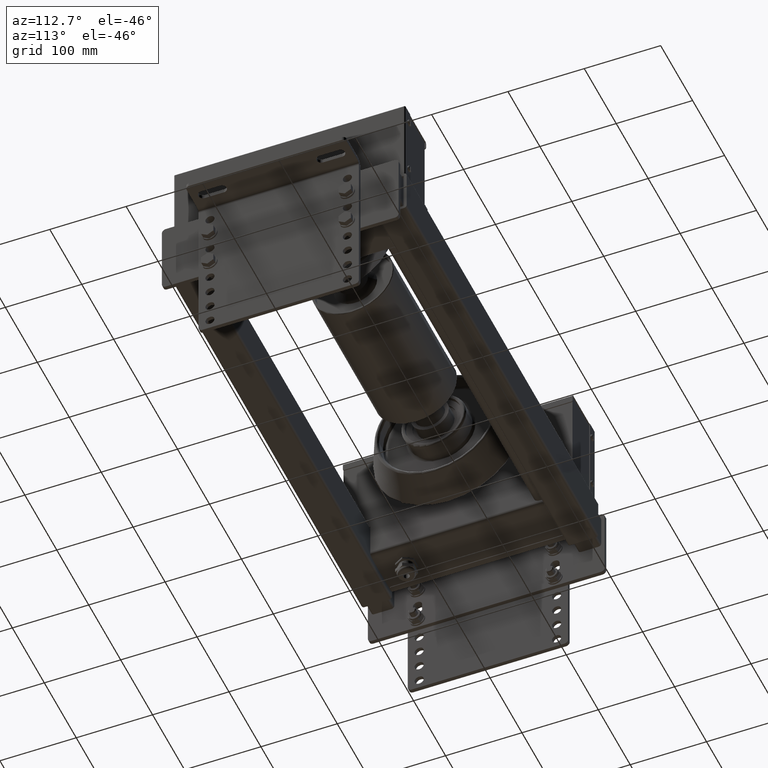
[diagram: clean part render]
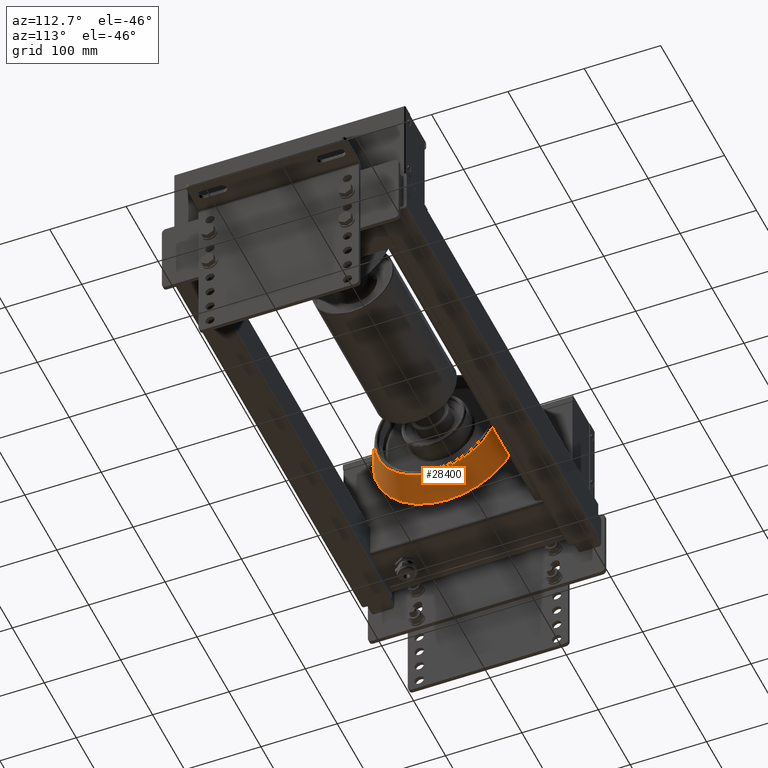
[diagram: same view with one face highlighted and labeled with its STEP entity id]
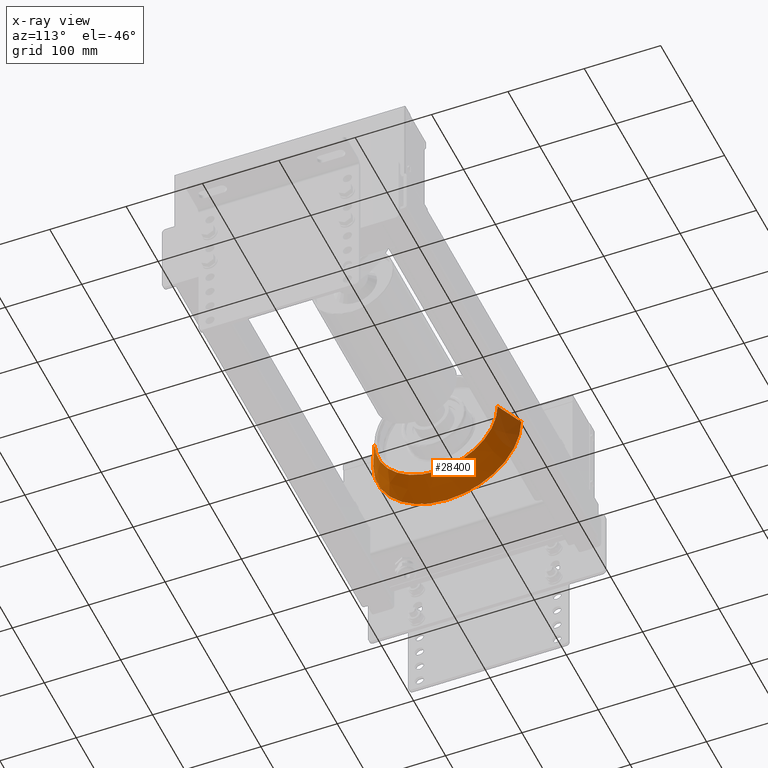
[diagram: x-ray of the same camera — body ghosted, the highlighted face saturated]
A machine part, auxiliary view. The second image highlights one B-rep face of the part: STEP entity #28400.
The next image is the same camera in x-ray: the body ghosted, the highlighted face saturated — about 15% of this face is hidden behind the body in this view.
In plain terms, the highlighted conical surface has half-angle 25 deg.
Its self-contained STEP definition (entity closure, byte-faithful):
#28049=CARTESIAN_POINT('',(16.443454345648249,-1.187832E-014,96.993861850997874));
#28050=VERTEX_POINT('',#28049);
#28058=CARTESIAN_POINT('',(16.443454345648249,-96.993861850997888,-1.187832E-014));
#28059=VERTEX_POINT('',#28058);
#28060=CARTESIAN_POINT('',(16.443454345648249,0.0,-1.187793E-014));
#28061=DIRECTION('',(1.0,0.0,0.0));
#28062=DIRECTION('',(0.0,-1.0,0.0));
#28063=AXIS2_PLACEMENT_3D('',#28060,#28061,#28062);
#28064=CIRCLE('',#28063,96.993861850997888);
#28065=EDGE_CURVE('',#28050,#28059,#28064,.T.);
#28082=CARTESIAN_POINT('',(16.443454345648249,96.993861850997888,-1.577722E-030));
#28083=VERTEX_POINT('',#28082);
#28084=CARTESIAN_POINT('',(-18.556545654351737,80.673093815572969,-1.975856E-014));
#28085=VERTEX_POINT('',#28084);
#28086=CARTESIAN_POINT('',(16.443454345648249,96.993861850997888,-1.577722E-030));
#28087=DIRECTION('',(-0.906307787036650,-0.422618261740699,-5.116381E-016));
#28088=VECTOR('',#28087,38.618227163687187);
#28089=LINE('',#28086,#28088);
#28090=EDGE_CURVE('',#28083,#28085,#28089,.T.);
#28100=CARTESIAN_POINT('',(-18.556545654351741,-80.673093815572969,-9.879605E-015));
#28101=VERTEX_POINT('',#28100);
#28102=CARTESIAN_POINT('',(16.443454345648249,-96.993861850997888,-1.187832E-014));
#28103=DIRECTION('',(-0.906307787036650,0.422618261740699,5.175581E-017));
#28104=VECTOR('',#28103,38.618227163687187);
#28105=LINE('',#28102,#28104);
#28106=EDGE_CURVE('',#28059,#28101,#28105,.T.);
#28142=CARTESIAN_POINT('',(-18.556545654351737,-9.879605E-015,80.673093815572955));
#28143=VERTEX_POINT('',#28142);
#28144=CARTESIAN_POINT('',(-18.556545654351737,0.0,-9.879278E-015));
#28145=DIRECTION('',(-1.0,0.0,0.0));
#28146=DIRECTION('',(0.0,-1.0,0.0));
#28147=AXIS2_PLACEMENT_3D('',#28144,#28145,#28146);
#28148=CIRCLE('',#28147,80.673093815572969);
#28149=EDGE_CURVE('',#28101,#28143,#28148,.T.);
#28370=CARTESIAN_POINT('',(-18.556545654351737,0.0,-9.879278E-015));
#28371=DIRECTION('',(-1.0,0.0,0.0));
#28372=DIRECTION('',(0.0,-1.0,0.0));
#28373=AXIS2_PLACEMENT_3D('',#28370,#28371,#28372);
#28374=CIRCLE('',#28373,80.673093815572969);
#28375=EDGE_CURVE('',#28143,#28085,#28374,.T.);
#28381=CARTESIAN_POINT('',(0.0,0.0,0.0));
#28382=DIRECTION('',(1.0,0.0,0.0));
#28383=DIRECTION('',(0.0,1.0,0.0));
#28384=AXIS2_PLACEMENT_3D('',#28381,#28382,#28383);
#28385=CONICAL_SURFACE('',#28384,89.326153163100031,24.999999999999979);
#28386=ORIENTED_EDGE('',*,*,#28090,.T.);
#28387=ORIENTED_EDGE('',*,*,#28375,.F.);
#28388=ORIENTED_EDGE('',*,*,#28149,.F.);
#28389=ORIENTED_EDGE('',*,*,#28106,.F.);
#28390=ORIENTED_EDGE('',*,*,#28065,.F.);
#28391=CARTESIAN_POINT('',(16.443454345648249,0.0,-1.187793E-014));
#28392=DIRECTION('',(1.0,0.0,0.0));
#28393=DIRECTION('',(0.0,-1.0,0.0));
#28394=AXIS2_PLACEMENT_3D('',#28391,#28392,#28393);
#28395=CIRCLE('',#28394,96.993861850997888);
#28396=EDGE_CURVE('',#28083,#28050,#28395,.T.);
#28397=ORIENTED_EDGE('',*,*,#28396,.F.);
#28398=EDGE_LOOP('',(#28386,#28387,#28388,#28389,#28390,#28397));
#28399=FACE_OUTER_BOUND('',#28398,.T.);
#28400=ADVANCED_FACE('',(#28399),#28385,.T.);